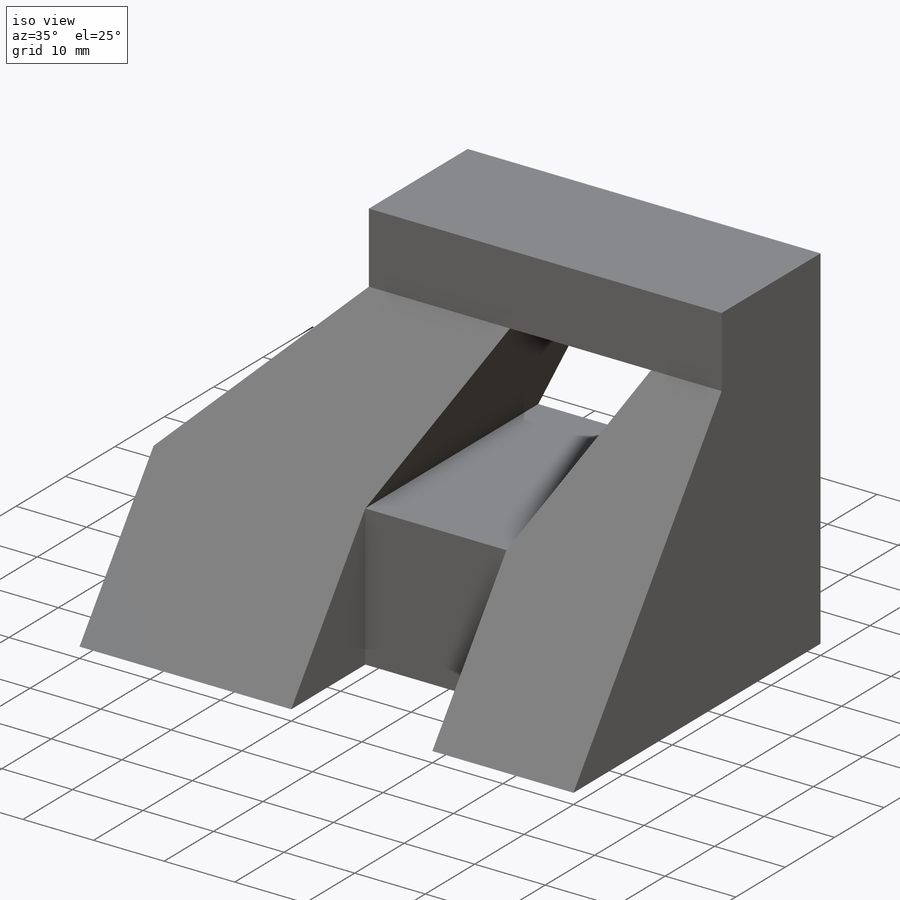
[diagram: iso view]
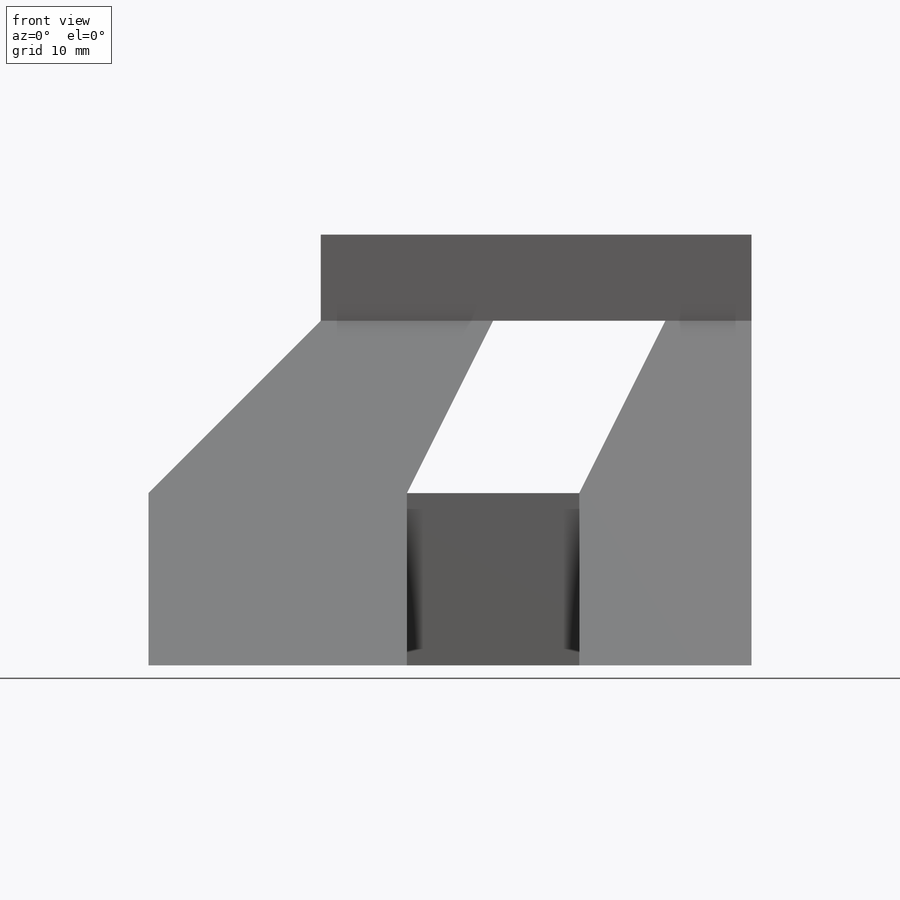
[diagram: front view]
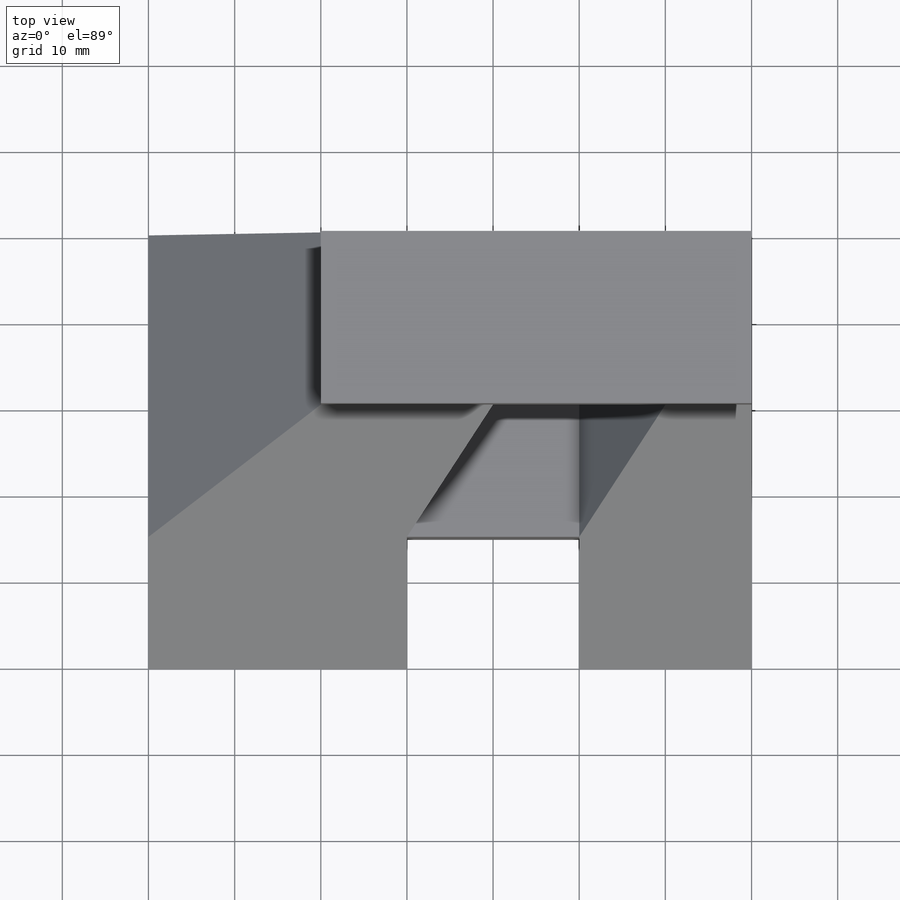
[diagram: top view]
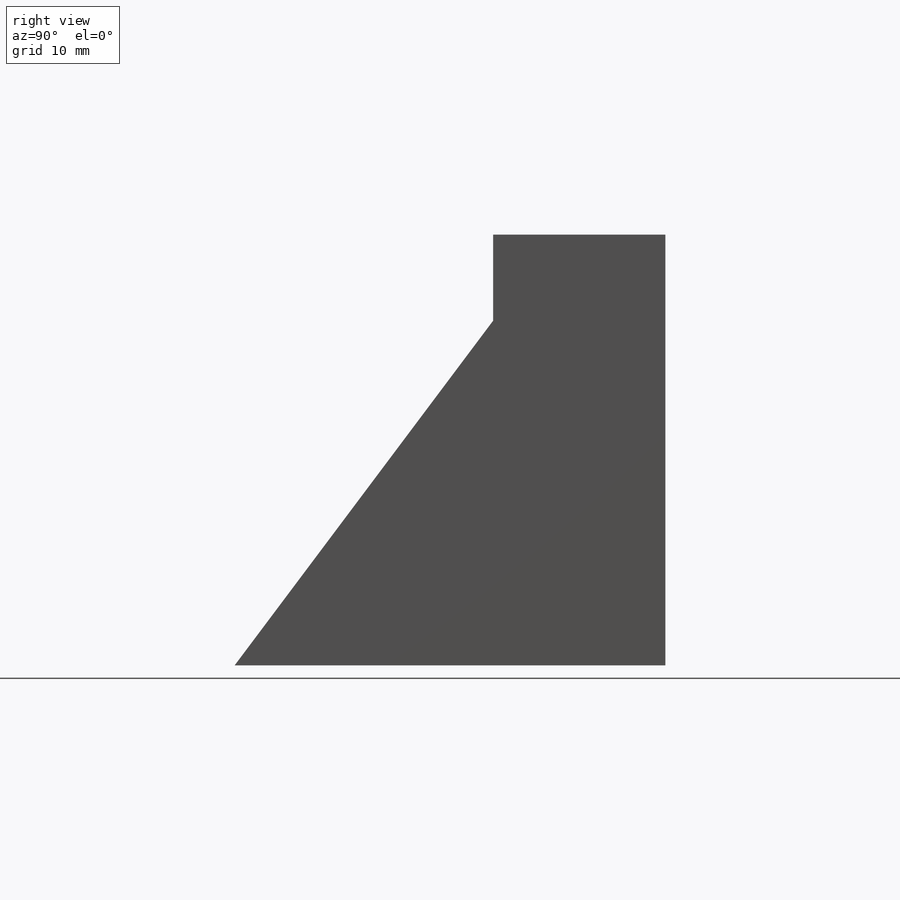
[diagram: right view]
SOLIDWORKS PART (.sldprt)
format: sldprt  version: not decoded by parser v0  size: 225,280 bytes
history: native  units: mm
features: sketch x8, cut_extrude x5, extrude x3, material x1 (+13 scaffold rows collapsed)
feature tree (30):
  scaffold x13  (default folders/planes/origin — collapsed)
  material  "Material <not specified>"
  sketch  "Sketch1"  dims[D1=70.0mm D2=20.0mm D3=40.0mm D4=50.0mm]
  extrude  "Boss-Extrude1"  Depth=50mm
  sketch  "Sketch2"  dims[c1.D1=~17.867332mm c1.D2=~22.847122mm c2.D1=20.0mm c2.D2=20.0mm c2.D3=20.0mm]
  cut_extrude  "Cut-Extrude1"  Depth=20mm
  sketch  "Sketch3"  dims[D1=30.0mm D2=10.0mm D3=20.0mm]
  cut_extrude  "Cut-Extrude2"  Depth=10mm
  sketch  "Sketch4"  dims[c1.D1=7.4489mm c1.D2=~50.410153mm c2.D1=50.0mm c2.D2=10.0mm]
  extrude  "Boss-Extrude2"  Depth=50mm
  sketch  "Sketch5"  dims[c1.D1=~10.228684mm c1.D2=50.0mm c2.D1=10.0mm]
  cut_extrude  "Cut-Extrude5"  Depth=30mm
  sketch  "Sketch6"  dims[D1=20.0mm D2=20.0mm]
  extrude  "Boss-Extrude4"  Depth=5mm
  sketch  "Sketch8"  dims[D1=~22.36068mm]
  cut_extrude  "Cut-Extrude8"  Depth=40mm
  sketch  "Sketch9"  dims[D1=20.0mm D2=30.0mm D3=40.0mm]
  cut_extrude  "Cut-Extrude9"  Depth=70mm
decode coverage: 16 of 16 modeling features carry decoded parameters
note: ~ marks probable driven/reference dimensions
note: suppression state not decoded; provenance and decode notes live in map.json
